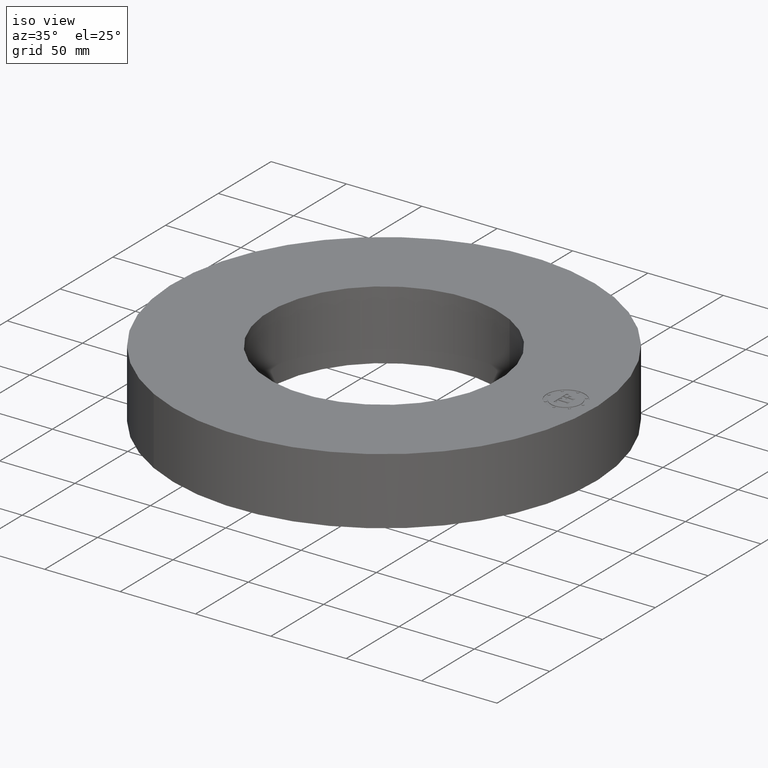
[diagram: clean part render]
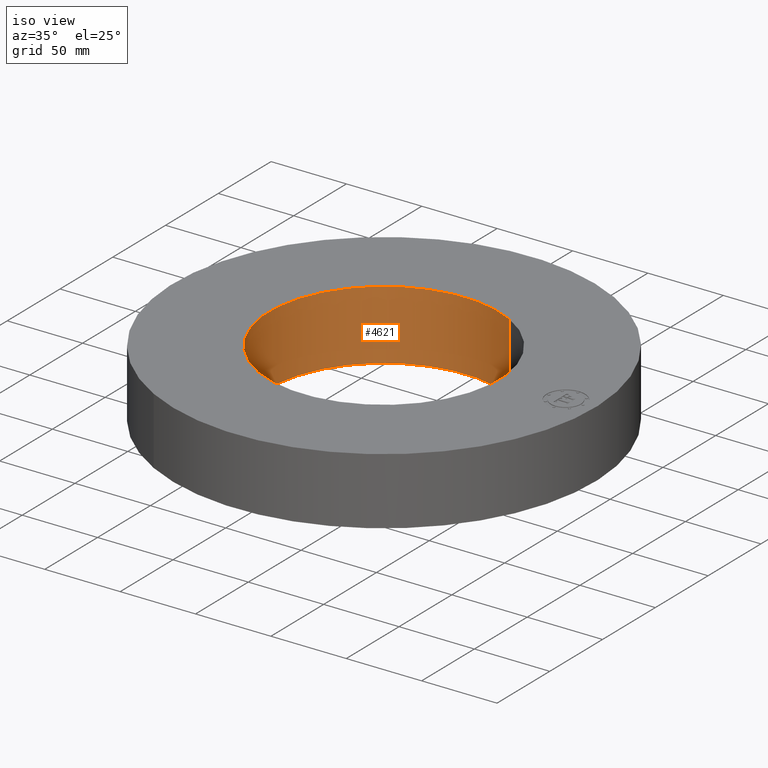
[diagram: same view with one face highlighted and labeled with its STEP entity id]
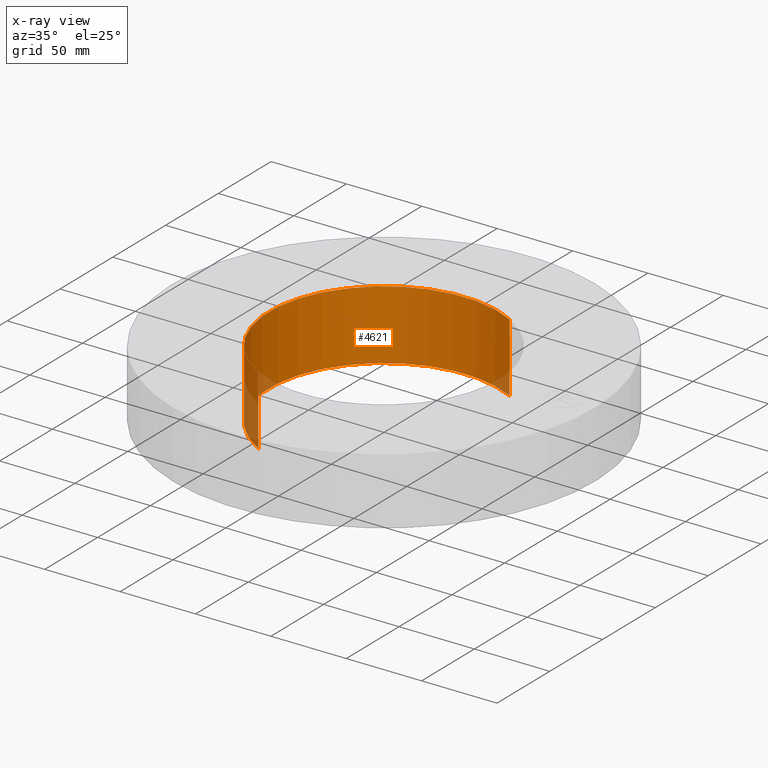
[diagram: x-ray of the same camera — body ghosted, the highlighted face saturated]
A machine part, iso view. The second image highlights one B-rep face of the part: STEP entity #4621.
The next image is the same camera in x-ray: the body ghosted, the highlighted face saturated — about 5% of this face is hidden behind the body in this view.
In plain terms, the highlighted cylindrical surface (partial cylindrical patch) has radius 76.2 mm, axis along (0, 0, -1).
Its self-contained STEP definition (entity closure, byte-faithful):
#4571=AXIS2_PLACEMENT_3D('Circle Axis2P3D',#4569,#4570,$) ;
#4582=AXIS2_PLACEMENT_3D('Cylinder Axis2P3D',#4579,#4580,#4581) ;
#4612=AXIS2_PLACEMENT_3D('Circle Axis2P3D',#4610,#4611,$) ;
#4564=CARTESIAN_POINT('Vertex',(1.43827661582,2.63274768568,-0.0625000000002)) ;
#4566=CARTESIAN_POINT('Vertex',(-1.43827661582,-2.63274768568,-0.0625000000002)) ;
#4569=CARTESIAN_POINT('Axis2P3D Location',(0.,0.,-0.0625000000003)) ;
#4579=CARTESIAN_POINT('Axis2P3D Location',(0.,0.,0.843750000003)) ;
#4588=CARTESIAN_POINT('Vertex',(1.43827661582,2.63274768568,1.75000000001)) ;
#4590=CARTESIAN_POINT('Vertex',(-1.43827661582,-2.63274768568,1.75000000001)) ;
#4593=CARTESIAN_POINT('Line Origine',(1.43827661582,2.63274768568,0.843750000003)) ;
#4598=CARTESIAN_POINT('Line Origine',(-1.43827661582,-2.63274768568,0.843750000003)) ;
#4610=CARTESIAN_POINT('Axis2P3D Location',(0.,0.,1.75000000001)) ;
#4570=DIRECTION('Axis2P3D Direction',(0.,0.,-0.0393700787402)) ;
#4580=DIRECTION('Axis2P3D Direction',(0.,0.,-0.0393700787402)) ;
#4581=DIRECTION('Axis2P3D XDirection',(-0.0188750212049,-0.0345504945626,0.)) ;
#4594=DIRECTION('Vector Direction',(0.,0.,-0.0393700787402)) ;
#4599=DIRECTION('Vector Direction',(0.,0.,-0.0393700787402)) ;
#4611=DIRECTION('Axis2P3D Direction',(0.,0.,-0.0393700787402)) ;
#4595=VECTOR('Line Direction',#4594,0.0393700787402) ;
#4600=VECTOR('Line Direction',#4599,0.0393700787402) ;
#4616=ORIENTED_EDGE('',*,*,#4614,.F.) ;
#4617=ORIENTED_EDGE('',*,*,#4602,.T.) ;
#4618=ORIENTED_EDGE('',*,*,#4573,.T.) ;
#4619=ORIENTED_EDGE('',*,*,#4597,.F.) ;
#4621=ADVANCED_FACE('PartBody',(#4620),#4583,.F.) ;
#4572=CIRCLE('generated circle',#4571,3.00000000001) ;
#4613=CIRCLE('generated circle',#4612,3.00000000001) ;
#4583=CYLINDRICAL_SURFACE('generated cylinder',#4582,3.00000000001) ;
#4573=EDGE_CURVE('',#4567,#4565,#4572,.T.) ;
#4597=EDGE_CURVE('',#4589,#4565,#4596,.T.) ;
#4602=EDGE_CURVE('',#4591,#4567,#4601,.T.) ;
#4614=EDGE_CURVE('',#4591,#4589,#4613,.T.) ;
#4615=EDGE_LOOP('',(#4616,#4617,#4618,#4619)) ;
#4620=FACE_OUTER_BOUND('',#4615,.T.) ;
#4596=LINE('Line',#4593,#4595) ;
#4601=LINE('Line',#4598,#4600) ;
#4565=VERTEX_POINT('',#4564) ;
#4567=VERTEX_POINT('',#4566) ;
#4589=VERTEX_POINT('',#4588) ;
#4591=VERTEX_POINT('',#4590) ;